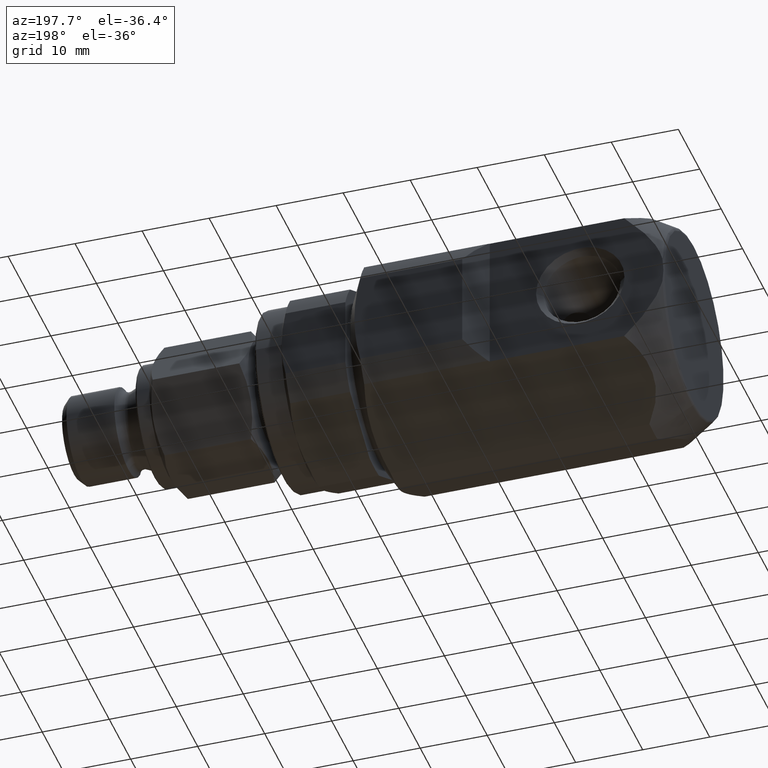
[diagram: clean part render]
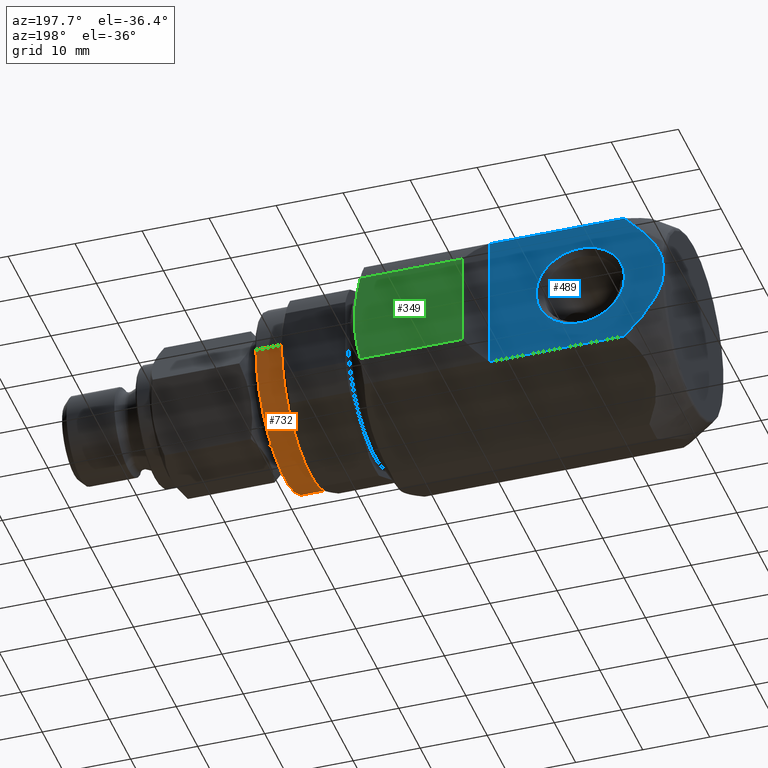
[diagram: same view with three faces highlighted in distinct colors, each labeled with its STEP entity id]
A machine part, auxiliary view with three faces highlighted in distinct colors.
Their STEP definitions:

[orange] entity #732 — the highlighted cylindrical surface (partial cylindrical patch) has radius 13.35 mm, axis along (1, -0, -0).
#95 = VERTEX_POINT ( 'NONE', #1294 ) ;
#96 = VERTEX_POINT ( 'NONE', #1293 ) ;
#98 = EDGE_CURVE ( 'NONE', #96, #226, #1292, .T. ) ;
#101 = EDGE_CURVE ( 'NONE', #95, #223, #1288, .T. ) ;
#223 = VERTEX_POINT ( 'NONE', #1604 ) ;
#226 = VERTEX_POINT ( 'NONE', #1649 ) ;
#732 = ADVANCED_FACE ( 'NONE', ( #2890 ), #2901, .T. ) ;
#733 = EDGE_LOOP ( 'NONE', ( #734, #735, #736, #737 ) ) ;
#734 = ORIENTED_EDGE ( 'NONE', *, *, #98, .F. ) ;
#735 = ORIENTED_EDGE ( 'NONE', *, *, #747, .T. ) ;
#736 = ORIENTED_EDGE ( 'NONE', *, *, #101, .T. ) ;
#737 = ORIENTED_EDGE ( 'NONE', *, *, #738, .F. ) ;
#738 = EDGE_CURVE ( 'NONE', #226, #223, #2979, .T. ) ;
#747 = EDGE_CURVE ( 'NONE', #96, #95, #2963, .T. ) ;
#1288 = LINE ( 'NONE', #1342, #1341 ) ;
#1289 = DIRECTION ( 'NONE',  ( 1.000000000000000000, -1.283015817066064000E-017, -4.934663061432619400E-017 ) ) ;
#1290 = VECTOR ( 'NONE', #1289, 1000.000000000000000 ) ;
#1291 = CARTESIAN_POINT ( 'NONE',  ( 57.83379999999999700, -13.35000000000000100, -1.272184116438705300E-014 ) ) ;
#1292 = LINE ( 'NONE', #1291, #1290 ) ;
#1293 = CARTESIAN_POINT ( 'NONE',  ( 57.29999999999999700, -13.34999999999995300, -1.433040340982680300E-014 ) ) ;
#1294 = CARTESIAN_POINT ( 'NONE',  ( 57.29999999999999700, 13.34999999999995300, 1.546530708665193900E-014 ) ) ;
#1340 = DIRECTION ( 'NONE',  ( 1.000000000000000000, -1.283015817066064000E-017, -4.934663061432619400E-017 ) ) ;
#1341 = VECTOR ( 'NONE', #1340, 1000.000000000000000 ) ;
#1342 = CARTESIAN_POINT ( 'NONE',  ( 57.83379999999999700, 13.35000000000000100, 1.380406237836836000E-014 ) ) ;
#1604 = CARTESIAN_POINT ( 'NONE',  ( 61.10000000000000100, 13.35000000000000100, 1.364288641345585100E-014 ) ) ;
#1649 = CARTESIAN_POINT ( 'NONE',  ( 61.10000000000000100, -13.35000000000000100, -1.278925853113234300E-014 ) ) ;
#2886 = CARTESIAN_POINT ( 'NONE',  ( 61.10000000000000100, -1.137547483727168000E-016, -4.375170963527145100E-016 ) ) ;
#2890 = FACE_OUTER_BOUND ( 'NONE', #733, .T. ) ;
#2900 = AXIS2_PLACEMENT_3D ( 'NONE', #2968, #2965, #2964 ) ;
#2901 = CYLINDRICAL_SURFACE ( 'NONE', #2900, 13.35000000000000100 ) ;
#2963 = CIRCLE ( 'NONE', #2987, 13.35000000000000100 ) ;
#2964 = DIRECTION ( 'NONE',  ( 0.0000000000000000000, 1.000000000000000000, 1.054711873393899900E-015 ) ) ;
#2965 = DIRECTION ( 'NONE',  ( 1.000000000000000000, -1.283015817066064000E-017, -4.934663061432619400E-017 ) ) ;
#2968 = CARTESIAN_POINT ( 'NONE',  ( 57.83379999999999700, -7.184888575570520700E-017, -2.763411314402044800E-016 ) ) ;
#2978 = AXIS2_PLACEMENT_3D ( 'NONE', #2886, #3002, #3001 ) ;
#2979 = CIRCLE ( 'NONE', #2978, 13.35000000000000100 ) ;
#2985 = DIRECTION ( 'NONE',  ( 1.000000000000000000, -1.283015817066064000E-017, -4.934663061432619400E-017 ) ) ;
#2986 = CARTESIAN_POINT ( 'NONE',  ( 57.29999999999999700, -6.500014732420860300E-017, -2.499999000182875100E-016 ) ) ;
#2987 = AXIS2_PLACEMENT_3D ( 'NONE', #2986, #2985, #2999 ) ;
#2999 = DIRECTION ( 'NONE',  ( 0.0000000000000000000, 1.000000000000000000, 1.054711873393899900E-015 ) ) ;
#3001 = DIRECTION ( 'NONE',  ( 0.0000000000000000000, 1.000000000000000000, 1.054711873393899900E-015 ) ) ;
#3002 = DIRECTION ( 'NONE',  ( 1.000000000000000000, -1.283015817066064000E-017, -4.934663061432619400E-017 ) ) ;

[blue] entity #489 — the highlighted planar face has unit normal (0, -1, 0).
#14 = VERTEX_POINT ( 'NONE', #1054 ) ;
#16 = EDGE_CURVE ( 'NONE', #14, #44, #1061, .T. ) ;
#44 = VERTEX_POINT ( 'NONE', #1282 ) ;
#327 = VERTEX_POINT ( 'NONE', #1919 ) ;
#351 = ORIENTED_EDGE ( 'NONE', *, *, #530, .F. ) ;
#352 = ORIENTED_EDGE ( 'NONE', *, *, #16, .F. ) ;
#353 = ORIENTED_EDGE ( 'NONE', *, *, #354, .T. ) ;
#354 = EDGE_CURVE ( 'NONE', #14, #355, #1973, .T. ) ;
#355 = VERTEX_POINT ( 'NONE', #1969 ) ;
#356 = ORIENTED_EDGE ( 'NONE', *, *, #357, .F. ) ;
#357 = EDGE_CURVE ( 'NONE', #496, #355, #1968, .T. ) ;
#476 = ORIENTED_EDGE ( 'NONE', *, *, #477, .F. ) ;
#477 = EDGE_CURVE ( 'NONE', #327, #497, #2250, .T. ) ;
#478 = EDGE_CURVE ( 'NONE', #542, #539, #2195, .T. ) ;
#489 = ADVANCED_FACE ( 'NONE', ( #2168, #2375 ), #2374, .F. ) ;
#490 = EDGE_LOOP ( 'NONE', ( #491, #492 ) ) ;
#491 = ORIENTED_EDGE ( 'NONE', *, *, #478, .F. ) ;
#492 = ORIENTED_EDGE ( 'NONE', *, *, #541, .F. ) ;
#493 = EDGE_LOOP ( 'NONE', ( #494, #476, #351, #352, #353, #356 ) ) ;
#494 = ORIENTED_EDGE ( 'NONE', *, *, #495, .T. ) ;
#495 = EDGE_CURVE ( 'NONE', #496, #497, #2369, .T. ) ;
#496 = VERTEX_POINT ( 'NONE', #2365 ) ;
#497 = VERTEX_POINT ( 'NONE', #2364 ) ;
#530 = EDGE_CURVE ( 'NONE', #44, #327, #2255, .T. ) ;
#539 = VERTEX_POINT ( 'NONE', #2324 ) ;
#541 = EDGE_CURVE ( 'NONE', #539, #542, #2322, .T. ) ;
#542 = VERTEX_POINT ( 'NONE', #2323 ) ;
#1054 = CARTESIAN_POINT ( 'NONE',  ( 5.950626435118699000, 14.00000000000000000, 10.39230484541326000 ) ) ;
#1061 = B_SPLINE_CURVE_WITH_KNOTS ( 'NONE', 3,
 ( #1086, #1085, #1084, #1083, #1115, #1114, #1113, #1112, #1111, #1110, #1109, #1108, #1107, #1106 ),
 .UNSPECIFIED., .F., .F.,
 ( 4, 2, 2, 2, 2, 2, 4 ),
 ( 0.04942347783026067300, 0.05197291806190455100, 0.05452235829354843500, 0.05579707840937037100, 0.05707179852519231300, 0.05834651864101425600, 0.05962123875683619800 ),
 .UNSPECIFIED. ) ;
#1083 = CARTESIAN_POINT ( 'NONE',  ( 3.608040327565344100, 13.99999999999999500, 7.934440340870628100 ) ) ;
#1084 = CARTESIAN_POINT ( 'NONE',  ( 4.747591132204047600, 13.99999999999999500, 9.195161301504844800 ) ) ;
#1085 = CARTESIAN_POINT ( 'NONE',  ( 5.341030453403910800, 13.99999999999999800, 9.801823227483664500 ) ) ;
#1086 = CARTESIAN_POINT ( 'NONE',  ( 5.950626435118699000, 14.00000000000000000, 10.39230484541326000 ) ) ;
#1106 = CARTESIAN_POINT ( 'NONE',  ( 0.2500000000000000000, 14.00000000000000000, 2.015511155429469800 ) ) ;
#1107 = CARTESIAN_POINT ( 'NONE',  ( 0.3531266303698908900, 14.00000000000000200, 2.433348840356790000 ) ) ;
#1108 = CARTESIAN_POINT ( 'NONE',  ( 0.4874519041005929100, 13.99999999999999600, 2.847965863848964700 ) ) ;
#1109 = CARTESIAN_POINT ( 'NONE',  ( 0.8003969836473761000, 13.99999999999999600, 3.647500716685856400 ) ) ;
#1110 = CARTESIAN_POINT ( 'NONE',  ( 0.9796546659043452500, 13.99999999999999300, 4.035781414667142500 ) ) ;
#1111 = CARTESIAN_POINT ( 'NONE',  ( 1.374606494738760400, 13.99999999999999800, 4.793974008628077300 ) ) ;
#1112 = CARTESIAN_POINT ( 'NONE',  ( 1.590324991364142200, 13.99999999999999300, 5.163873628959756000 ) ) ;
#1113 = CARTESIAN_POINT ( 'NONE',  ( 2.051323898481435900, 13.99999999999999800, 5.888769751202320700 ) ) ;
#1114 = CARTESIAN_POINT ( 'NONE',  ( 2.297346933061227500, 13.99999999999999500, 6.244627546891058100 ) ) ;
#1115 = CARTESIAN_POINT ( 'NONE',  ( 3.061615167443576500, 13.99999999999999800, 7.280695442007894000 ) ) ;
#1282 = CARTESIAN_POINT ( 'NONE',  ( 0.2500000000000000000, 14.00000000000000000, 2.015511155429469800 ) ) ;
#1919 = CARTESIAN_POINT ( 'NONE',  ( 0.2499999999998790100, 14.00000000000000000, -2.015511155430090200 ) ) ;
#1965 = DIRECTION ( 'NONE',  ( 0.0000000000000000000, 0.0000000000000000000, 1.000000000000000000 ) ) ;
#1966 = VECTOR ( 'NONE', #1965, 1000.000000000000000 ) ;
#1967 = CARTESIAN_POINT ( 'NONE',  ( 26.00000000000000000, 14.00000000000000000, -11.00000000000000000 ) ) ;
#1968 = LINE ( 'NONE', #1967, #1966 ) ;
#1969 = CARTESIAN_POINT ( 'NONE',  ( 26.00000000000000000, 14.00000000000000000, 10.39230484541326000 ) ) ;
#1970 = DIRECTION ( 'NONE',  ( 1.000000000000000000, 1.334402673828311900E-016, -7.704177429421319000E-017 ) ) ;
#1971 = VECTOR ( 'NONE', #1970, 1000.000000000000000 ) ;
#1972 = CARTESIAN_POINT ( 'NONE',  ( -2.490884991146184400E-015, 14.00000000000000000, 10.39230484541326000 ) ) ;
#1973 = LINE ( 'NONE', #1972, #1971 ) ;
#2168 = FACE_BOUND ( 'NONE', #490, .T. ) ;
#2182 = DIRECTION ( 'NONE',  ( -1.000000000000000000, 0.0000000000000000000, 0.0000000000000000000 ) ) ;
#2183 = DIRECTION ( 'NONE',  ( 6.859841095126988600E-017, 1.000000000000000000, 0.0000000000000000000 ) ) ;
#2184 = CARTESIAN_POINT ( 'NONE',  ( 12.50000000000000000, 14.00000000000000000, 0.0000000000000000000 ) ) ;
#2185 = AXIS2_PLACEMENT_3D ( 'NONE', #2184, #2183, #2182 ) ;
#2186 = CARTESIAN_POINT ( 'NONE',  ( 5.950626435106129500, 14.00000000000000000, -10.39230484540110000 ) ) ;
#2187 = CARTESIAN_POINT ( 'NONE',  ( 5.340448279822832800, 13.99999999999999800, -9.801259308414881100 ) ) ;
#2188 = CARTESIAN_POINT ( 'NONE',  ( 4.745053551856632800, 13.99999999999999600, -9.192715691987709500 ) ) ;
#2189 = CARTESIAN_POINT ( 'NONE',  ( 3.598390690513587400, 13.99999999999999800, -7.923398983449417600 ) ) ;
#2190 = CARTESIAN_POINT ( 'NONE',  ( 3.046489404427859900, 13.99999999999999600, -7.261497252974335100 ) ) ;
#2191 = CARTESIAN_POINT ( 'NONE',  ( 2.034904030708147600, 13.99999999999999800, -5.887514484353928000 ) ) ;
#2192 = CARTESIAN_POINT ( 'NONE',  ( 1.572144341953803700, 13.99999999999999600, -5.173110291904103000 ) ) ;
#2193 = CARTESIAN_POINT ( 'NONE',  ( 0.9800185504387686200, 13.99999999999999600, -4.036519380970922600 ) ) ;
#2194 = CARTESIAN_POINT ( 'NONE',  ( 0.7994760070986669500, 13.99999999999999600, -3.645726475791385600 ) ) ;
#2195 = CIRCLE ( 'NONE', #2185, 6.599999999999999600 ) ;
#2250 = B_SPLINE_CURVE_WITH_KNOTS ( 'NONE', 3,
 ( #2253, #2252, #2251, #2194, #2193, #2192, #2191, #2190, #2189, #2188, #2187, #2186 ),
 .UNSPECIFIED., .F., .F.,
 ( 4, 2, 2, 2, 2, 4 ),
 ( 0.06364904316871415600, 0.06492307427021656900, 0.06619710537171898100, 0.06874516757472382000, 0.07129322977772864500, 0.07384129198073347000 ),
 .UNSPECIFIED. ) ;
#2251 = CARTESIAN_POINT ( 'NONE',  ( 0.4845042565832342600, 13.99999999999999600, -2.839849115828386900 ) ) ;
#2252 = CARTESIAN_POINT ( 'NONE',  ( 0.3525594699843877500, 13.99999999999999300, -2.431050879280952400 ) ) ;
#2253 = CARTESIAN_POINT ( 'NONE',  ( 0.2499999999998790100, 14.00000000000000000, -2.015511155430090200 ) ) ;
#2255 = B_SPLINE_CURVE_WITH_KNOTS ( 'NONE', 3,
 ( #2261, #2260, #2259, #2258, #2257, #2398, #2397, #2396, #2395, #2394, #2393, #2392, #2391, #2390 ),
 .UNSPECIFIED., .F., .F.,
 ( 4, 2, 2, 2, 2, 2, 4 ),
 ( 0.008189093237281536200, 0.008694175583219207500, 0.009199257929156878800, 0.01020942262103222000, 0.01121958731290756100, 0.01172466965884523200, 0.01222975200478290300 ),
 .UNSPECIFIED. ) ;
#2257 = CARTESIAN_POINT ( 'NONE',  ( 0.1304691520792794500, 14.00000000000000000, 1.178692370830809500 ) ) ;
#2258 = CARTESIAN_POINT ( 'NONE',  ( 0.1442276009299935100, 13.99999999999999800, 1.347096661835790000 ) ) ;
#2259 = CARTESIAN_POINT ( 'NONE',  ( 0.1840356463689449600, 13.99999999999999500, 1.682644925543377300 ) ) ;
#2260 = CARTESIAN_POINT ( 'NONE',  ( 0.2091224124721823800, 13.99999999999999800, 1.849887625631599900 ) ) ;
#2261 = CARTESIAN_POINT ( 'NONE',  ( 0.2500000000000000000, 14.00000000000000000, 2.015511155429469800 ) ) ;
#2318 = DIRECTION ( 'NONE',  ( -1.000000000000000000, 0.0000000000000000000, 0.0000000000000000000 ) ) ;
#2319 = DIRECTION ( 'NONE',  ( 6.859841095126988600E-017, 1.000000000000000000, 0.0000000000000000000 ) ) ;
#2320 = CARTESIAN_POINT ( 'NONE',  ( 12.50000000000000000, 14.00000000000000000, 0.0000000000000000000 ) ) ;
#2321 = AXIS2_PLACEMENT_3D ( 'NONE', #2320, #2319, #2318 ) ;
#2322 = CIRCLE ( 'NONE', #2321, 6.599999999999999600 ) ;
#2323 = CARTESIAN_POINT ( 'NONE',  ( 5.899999999999999500, 14.00000000000000000, 0.0000000000000000000 ) ) ;
#2324 = CARTESIAN_POINT ( 'NONE',  ( 19.09999999999999800, 14.00000000000000000, 8.082668874372530000E-016 ) ) ;
#2364 = CARTESIAN_POINT ( 'NONE',  ( 5.950626435106129500, 14.00000000000000000, -10.39230484540110000 ) ) ;
#2365 = CARTESIAN_POINT ( 'NONE',  ( 26.00000000000000000, 14.00000000000000000, -10.39230484541323900 ) ) ;
#2366 = DIRECTION ( 'NONE',  ( -1.000000000000000000, -1.334402673828311900E-016, -7.704177429421338700E-017 ) ) ;
#2367 = VECTOR ( 'NONE', #2366, 1000.000000000000000 ) ;
#2368 = CARTESIAN_POINT ( 'NONE',  ( 3.558407130208830300E-016, 14.00000000000000000, -10.39230484541323900 ) ) ;
#2369 = LINE ( 'NONE', #2368, #2367 ) ;
#2370 = DIRECTION ( 'NONE',  ( 1.000000000000000000, 1.334402673828311900E-016, 0.0000000000000000000 ) ) ;
#2371 = DIRECTION ( 'NONE',  ( 1.334402673828311900E-016, -1.000000000000000000, 0.0000000000000000000 ) ) ;
#2372 = CARTESIAN_POINT ( 'NONE',  ( 26.00000000000000000, 14.00000000000000000, -11.00000000000000000 ) ) ;
#2373 = AXIS2_PLACEMENT_3D ( 'NONE', #2372, #2371, #2370 ) ;
#2374 = PLANE ( 'NONE',  #2373 ) ;
#2375 = FACE_OUTER_BOUND ( 'NONE', #493, .T. ) ;
#2390 = CARTESIAN_POINT ( 'NONE',  ( 0.2499999999998790100, 14.00000000000000000, -2.015511155430090200 ) ) ;
#2391 = CARTESIAN_POINT ( 'NONE',  ( 0.2095622708593414300, 14.00000000000000000, -1.851669797799433000 ) ) ;
#2392 = CARTESIAN_POINT ( 'NONE',  ( 0.1843758625355066400, 13.99999999999999800, -1.684851683682276900 ) ) ;
#2393 = CARTESIAN_POINT ( 'NONE',  ( 0.1446053970713473100, 13.99999999999999800, -1.350930301513159700 ) ) ;
#2394 = CARTESIAN_POINT ( 'NONE',  ( 0.1308225952638654400, 13.99999999999998900, -1.183224203985593100 ) ) ;
#2395 = CARTESIAN_POINT ( 'NONE',  ( 0.09955415968804413900, 13.99999999999999800, -0.6788746521618092000 ) ) ;
#2396 = CARTESIAN_POINT ( 'NONE',  ( 0.09184345403287200200, 13.99999999999999500, -0.3421983609402244900 ) ) ;
#2397 = CARTESIAN_POINT ( 'NONE',  ( 0.09166141067866849500, 13.99999999999999800, 0.3314984267534189000 ) ) ;
#2398 = CARTESIAN_POINT ( 'NONE',  ( 0.09930374655366219800, 13.99999999999999800, 0.6724428376126281300 ) ) ;

[green] entity #349 — the highlighted planar face has unit normal (0, 1, 0).
#313 = VERTEX_POINT ( 'NONE', #1741 ) ;
#315 = EDGE_CURVE ( 'NONE', #316, #313, #1735, .T. ) ;
#316 = VERTEX_POINT ( 'NONE', #1734 ) ;
#345 = EDGE_CURVE ( 'NONE', #382, #316, #2109, .T. ) ;
#349 = ADVANCED_FACE ( 'NONE', ( #2105 ), #2104, .T. ) ;
#350 = EDGE_LOOP ( 'NONE', ( #365, #366, #367, #368 ) ) ;
#365 = ORIENTED_EDGE ( 'NONE', *, *, #384, .F. ) ;
#366 = ORIENTED_EDGE ( 'NONE', *, *, #345, .T. ) ;
#367 = ORIENTED_EDGE ( 'NONE', *, *, #315, .T. ) ;
#368 = ORIENTED_EDGE ( 'NONE', *, *, #369, .T. ) ;
#369 = EDGE_CURVE ( 'NONE', #313, #385, #1948, .T. ) ;
#382 = VERTEX_POINT ( 'NONE', #2076 ) ;
#384 = EDGE_CURVE ( 'NONE', #382, #385, #2075, .T. ) ;
#385 = VERTEX_POINT ( 'NONE', #1941 ) ;
#1734 = CARTESIAN_POINT ( 'NONE',  ( 44.69059892324150200, 16.00000000000000000, 7.088723439378929600 ) ) ;
#1735 = B_SPLINE_CURVE_WITH_KNOTS ( 'NONE', 3,
 ( #1740, #1739, #1738, #1737, #1853, #1852, #1851, #1850, #1849, #1848, #1847, #1846, #1845, #1844 ),
 .UNSPECIFIED., .F., .F.,
 ( 4, 2, 2, 2, 2, 2, 4 ),
 ( 0.009328151665123744100, 0.01288416809065372900, 0.01466217630341872000, 0.01644018451618371000, 0.01999620094171369200, 0.02177420915447868300, 0.02355221736724367300 ),
 .UNSPECIFIED. ) ;
#1737 = CARTESIAN_POINT ( 'NONE',  ( 45.40360977459312900, 16.00000000000000700, 2.981198488286521000 ) ) ;
#1738 = CARTESIAN_POINT ( 'NONE',  ( 45.17912422169393200, 15.99999999999999600, 4.764053476091640400 ) ) ;
#1739 = CARTESIAN_POINT ( 'NONE',  ( 44.96075189728016100, 16.00000000000000400, 5.933568083846128400 ) ) ;
#1740 = CARTESIAN_POINT ( 'NONE',  ( 44.69059892324150200, 16.00000000000000000, 7.088723439378929600 ) ) ;
#1741 = CARTESIAN_POINT ( 'NONE',  ( 44.69059892324150200, 16.00000000000000000, -7.088723439378920700 ) ) ;
#1844 = CARTESIAN_POINT ( 'NONE',  ( 44.69059892324150200, 16.00000000000000000, -7.088723439378920700 ) ) ;
#1845 = CARTESIAN_POINT ( 'NONE',  ( 44.82714906572487500, 16.00000000000000700, -6.504844513190049000 ) ) ;
#1846 = CARTESIAN_POINT ( 'NONE',  ( 44.95047484476490500, 16.00000000000000400, -5.916881623690502000 ) ) ;
#1847 = CARTESIAN_POINT ( 'NONE',  ( 45.16495953945594300, 16.00000000000000400, -4.741254269164638700 ) ) ;
#1848 = CARTESIAN_POINT ( 'NONE',  ( 45.25640405887218500, 16.00000000000000700, -4.152355742204789200 ) ) ;
#1849 = CARTESIAN_POINT ( 'NONE',  ( 45.47852116042803800, 16.00000000000000700, -2.382074414761160300 ) ) ;
#1850 = CARTESIAN_POINT ( 'NONE',  ( 45.55633463864862900, 15.99999999999999600, -1.197061736605427000 ) ) ;
#1851 = CARTESIAN_POINT ( 'NONE',  ( 45.55676794712169200, 16.00000000000000400, 0.5884427972697365800 ) ) ;
#1852 = CARTESIAN_POINT ( 'NONE',  ( 45.53768001076485900, 16.00000000000000000, 1.184931677896037000 ) ) ;
#1853 = CARTESIAN_POINT ( 'NONE',  ( 45.46124107112012800, 16.00000000000000000, 2.380536995085377900 ) ) ;
#1941 = CARTESIAN_POINT ( 'NONE',  ( 29.46410161513780000, 16.00000000000000000, -7.088723439378920700 ) ) ;
#1942 = DIRECTION ( 'NONE',  ( 3.252606517456559600E-016, 1.877893248421449800E-016, -1.000000000000000000 ) ) ;
#1943 = VECTOR ( 'NONE', #1942, 1000.000000000000000 ) ;
#1944 = CARTESIAN_POINT ( 'NONE',  ( 29.46410161513780000, 16.00000000000000000, 9.237604307034029500 ) ) ;
#1945 = DIRECTION ( 'NONE',  ( -1.000000000000000000, 0.0000000000000000000, 0.0000000000000000000 ) ) ;
#1946 = VECTOR ( 'NONE', #1945, 1000.000000000000000 ) ;
#1947 = CARTESIAN_POINT ( 'NONE',  ( 9.247099999999999700, 16.00000000000000000, -7.088723439378920700 ) ) ;
#1948 = LINE ( 'NONE', #1947, #1946 ) ;
#1974 = DIRECTION ( 'NONE',  ( 0.0000000000000000000, -1.877893248421449800E-016, 1.000000000000000000 ) ) ;
#1975 = DIRECTION ( 'NONE',  ( 0.0000000000000000000, 1.000000000000000000, 1.877893248421449800E-016 ) ) ;
#1976 = CARTESIAN_POINT ( 'NONE',  ( 0.0000000000000000000, 16.00000000000000000, 9.237604307034018800 ) ) ;
#1977 = AXIS2_PLACEMENT_3D ( 'NONE', #1976, #1975, #1974 ) ;
#2075 = LINE ( 'NONE', #1944, #1943 ) ;
#2076 = CARTESIAN_POINT ( 'NONE',  ( 29.46410161513780000, 16.00000000000000000, 7.088723439378929600 ) ) ;
#2104 = PLANE ( 'NONE',  #1977 ) ;
#2105 = FACE_OUTER_BOUND ( 'NONE', #350, .T. ) ;
#2106 = DIRECTION ( 'NONE',  ( 1.000000000000000000, 0.0000000000000000000, 0.0000000000000000000 ) ) ;
#2107 = VECTOR ( 'NONE', #2106, 1000.000000000000000 ) ;
#2108 = CARTESIAN_POINT ( 'NONE',  ( 9.247099999999999700, 16.00000000000000000, 7.088723439378929600 ) ) ;
#2109 = LINE ( 'NONE', #2108, #2107 ) ;